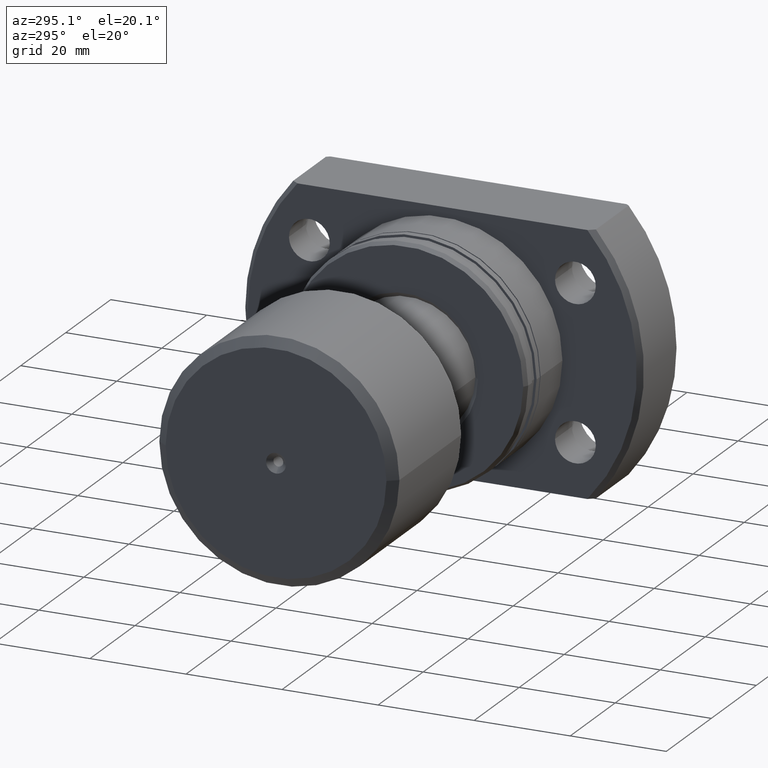
[diagram: clean part render]
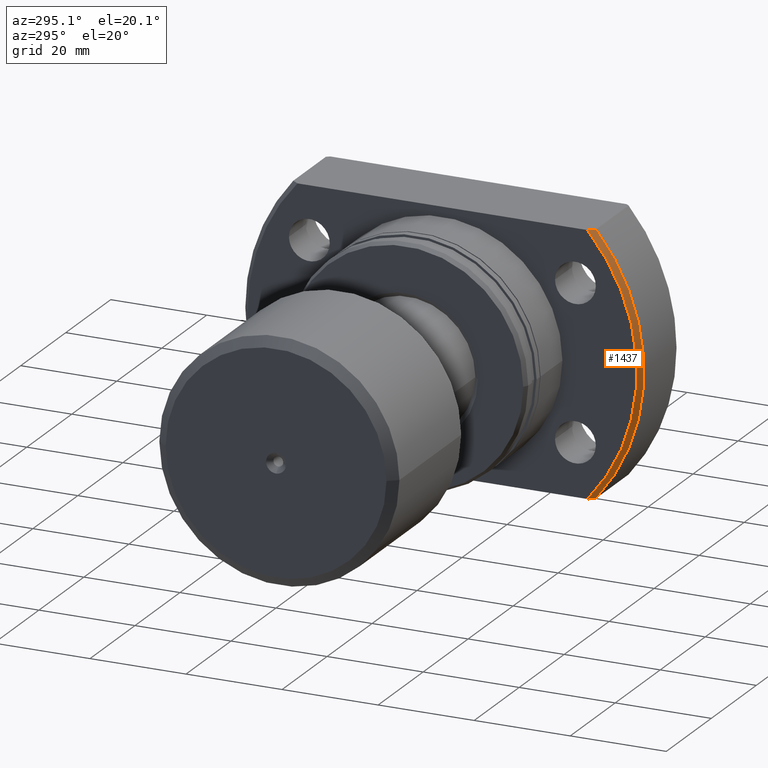
[diagram: same view with one face highlighted and labeled with its STEP entity id]
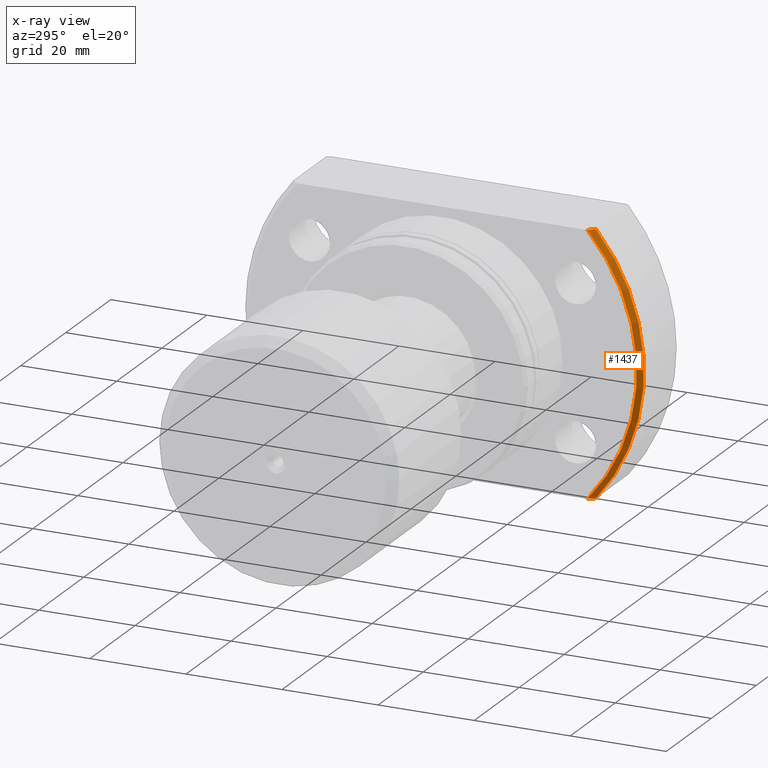
[diagram: x-ray of the same camera — body ghosted, the highlighted face saturated]
A machine part, auxiliary view. The second image highlights one B-rep face of the part: STEP entity #1437.
The next image is the same camera in x-ray: the body ghosted, the highlighted face saturated — about 0% of this face is hidden behind the body in this view.
In plain terms, the highlighted conical surface has half-angle 45 deg.
Its self-contained STEP definition (entity closure, byte-faithful):
#25 = CARTESIAN_POINT ( 'NONE',  ( 16.20000000000000284, 4.744175208870831388E-16, 0.000000000000000000 ) ) ;
#49 = B_SPLINE_CURVE_WITH_KNOTS ( 'NONE', 3,
 ( #86, #527, #2745, #508 ),
 .UNSPECIFIED., .F., .F.,
 ( 4, 4 ),
 ( 0.1192530742752442169, 0.1209245665045657891 ),
 .UNSPECIFIED. ) ;
#86 = CARTESIAN_POINT ( 'NONE',  ( 16.20000000000000639, -30.18691769624705046, 27.00000000000001066 ) ) ;
#124 = EDGE_LOOP ( 'NONE', ( #797, #2153, #761, #2669 ) ) ;
#250 = EDGE_CURVE ( 'NONE', #2871, #2021, #49, .T. ) ;
#340 = AXIS2_PLACEMENT_3D ( 'NONE', #1897, #2490, #1879 ) ;
#345 = CIRCLE ( 'NONE', #1594, 41.49999999999991473 ) ;
#382 = FACE_OUTER_BOUND ( 'NONE', #124, .T. ) ;
#410 = CARTESIAN_POINT ( 'NONE',  ( 17.19999999999998508, -31.51586901863833035, -27.00000000000001066 ) ) ;
#430 = VERTEX_POINT ( 'NONE', #2145 ) ;
#462 = CARTESIAN_POINT ( 'NONE',  ( 17.19999999999998508, 5.037025530406062939E-16, 0.000000000000000000 ) ) ;
#508 = CARTESIAN_POINT ( 'NONE',  ( 17.19999999999998508, -31.51586901863831613, 27.00000000000001776 ) ) ;
#527 = CARTESIAN_POINT ( 'NONE',  ( 16.53141418566412923, -30.63155648495868633, 27.00000000000001066 ) ) ;
#676 = DIRECTION ( 'NONE',  ( 0.000000000000000000, 1.000000000000000000, 0.000000000000000000 ) ) ;
#761 = ORIENTED_EDGE ( 'NONE', *, *, #1936, .T. ) ;
#797 = ORIENTED_EDGE ( 'NONE', *, *, #250, .F. ) ;
#823 = DIRECTION ( 'NONE',  ( 0.000000000000000000, 1.000000000000000000, 0.000000000000000000 ) ) ;
#1060 = CARTESIAN_POINT ( 'NONE',  ( 17.19999999999998508, -31.51586901863831613, 27.00000000000001776 ) ) ;
#1204 = CARTESIAN_POINT ( 'NONE',  ( 16.53141418566413279, -30.63155648495868988, -27.00000000000001066 ) ) ;
#1254 = DIRECTION ( 'NONE',  ( 1.000000000000000000, 2.928503215352364811E-17, -0.000000000000000000 ) ) ;
#1437 = ADVANCED_FACE ( 'NONE', ( #382 ), #1896, .T. ) ;
#1466 = CARTESIAN_POINT ( 'NONE',  ( 16.20000000000000639, -30.18691769624705046, -27.00000000000001066 ) ) ;
#1540 = AXIS2_PLACEMENT_3D ( 'NONE', #25, #1254, #823 ) ;
#1594 = AXIS2_PLACEMENT_3D ( 'NONE', #462, #2943, #676 ) ;
#1633 = B_SPLINE_CURVE_WITH_KNOTS ( 'NONE', 3,
 ( #1956, #1204, #1684, #410 ),
 .UNSPECIFIED., .F., .F.,
 ( 4, 4 ),
 ( 0.1192530742752442169, 0.1209245665045658030 ),
 .UNSPECIFIED. ) ;
#1638 = EDGE_CURVE ( 'NONE', #2871, #3007, #3055, .T. ) ;
#1684 = CARTESIAN_POINT ( 'NONE',  ( 16.86480748815608521, -31.07448854351060774, -27.00000000000001066 ) ) ;
#1879 = DIRECTION ( 'NONE',  ( 0.000000000000000000, 1.000000000000000000, 0.000000000000000000 ) ) ;
#1896 = CONICAL_SURFACE ( 'NONE', #340, 40.49999999999992184, 0.7853981633974500554 ) ;
#1897 = CARTESIAN_POINT ( 'NONE',  ( 16.20000000000000284, 4.744175208870831388E-16, 0.000000000000000000 ) ) ;
#1936 = EDGE_CURVE ( 'NONE', #3007, #430, #1633, .T. ) ;
#1947 = EDGE_CURVE ( 'NONE', #2021, #430, #345, .T. ) ;
#1956 = CARTESIAN_POINT ( 'NONE',  ( 16.20000000000000639, -30.18691769624705046, -27.00000000000001066 ) ) ;
#2021 = VERTEX_POINT ( 'NONE', #1060 ) ;
#2026 = CARTESIAN_POINT ( 'NONE',  ( 16.20000000000000639, -30.18691769624705046, 27.00000000000001066 ) ) ;
#2145 = CARTESIAN_POINT ( 'NONE',  ( 17.19999999999998508, -31.51586901863833035, -27.00000000000001066 ) ) ;
#2153 = ORIENTED_EDGE ( 'NONE', *, *, #1638, .T. ) ;
#2490 = DIRECTION ( 'NONE',  ( 1.000000000000000000, 2.928503215352364811E-17, -0.000000000000000000 ) ) ;
#2669 = ORIENTED_EDGE ( 'NONE', *, *, #1947, .F. ) ;
#2745 = CARTESIAN_POINT ( 'NONE',  ( 16.86480748815608166, -31.07448854351060419, 27.00000000000001066 ) ) ;
#2871 = VERTEX_POINT ( 'NONE', #2026 ) ;
#2943 = DIRECTION ( 'NONE',  ( 1.000000000000000000, 2.928503215352364811E-17, -0.000000000000000000 ) ) ;
#3007 = VERTEX_POINT ( 'NONE', #1466 ) ;
#3055 = CIRCLE ( 'NONE', #1540, 40.49999999999992184 ) ;